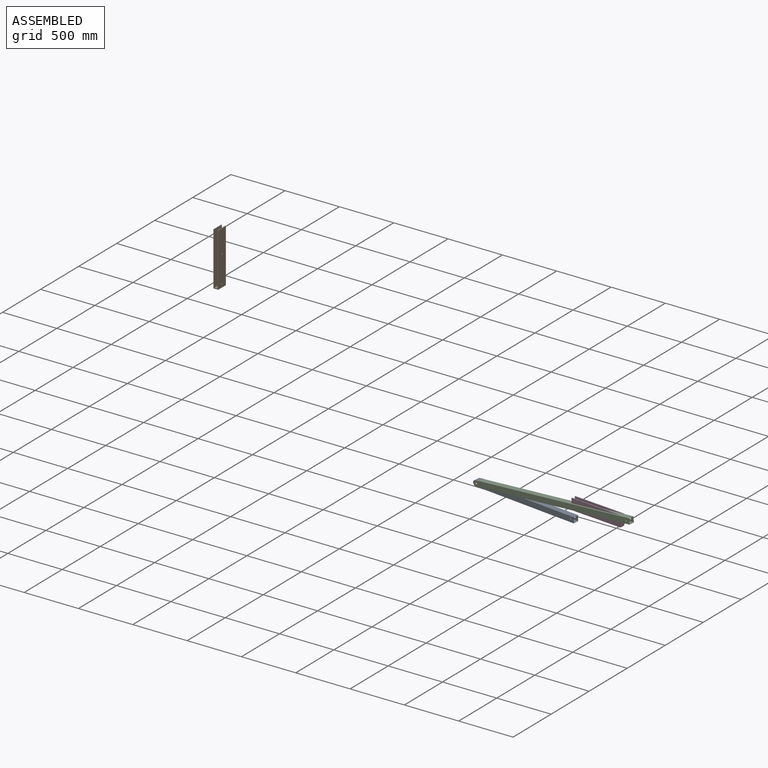
[diagram: assembled view]
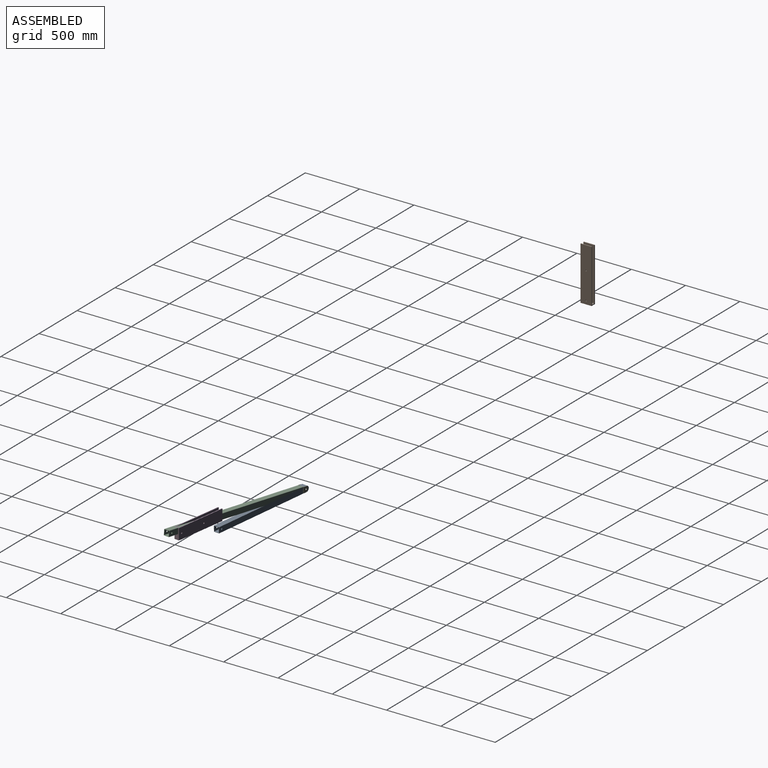
[diagram: assembled view, second angle]
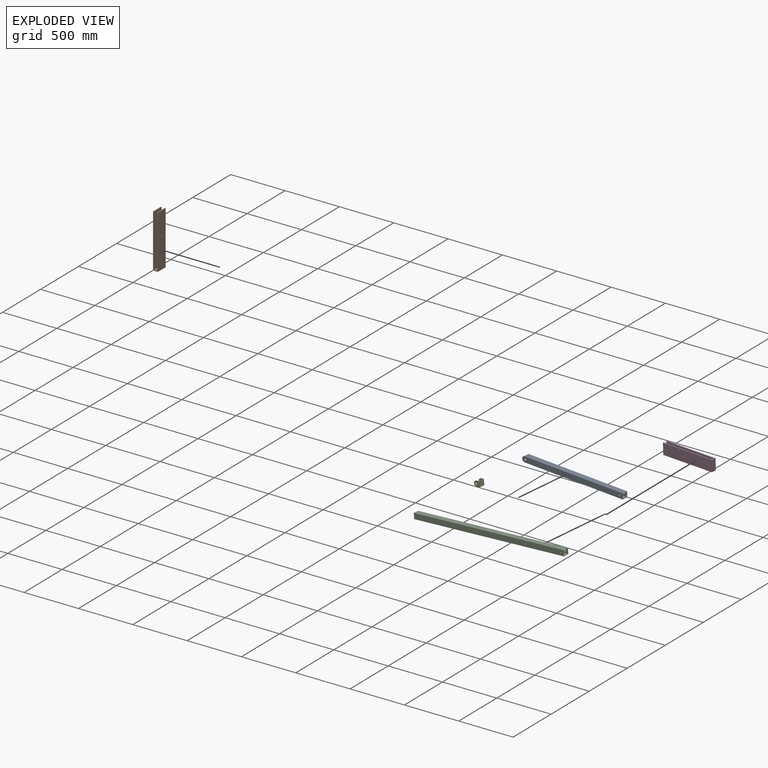
[diagram: exploded view]
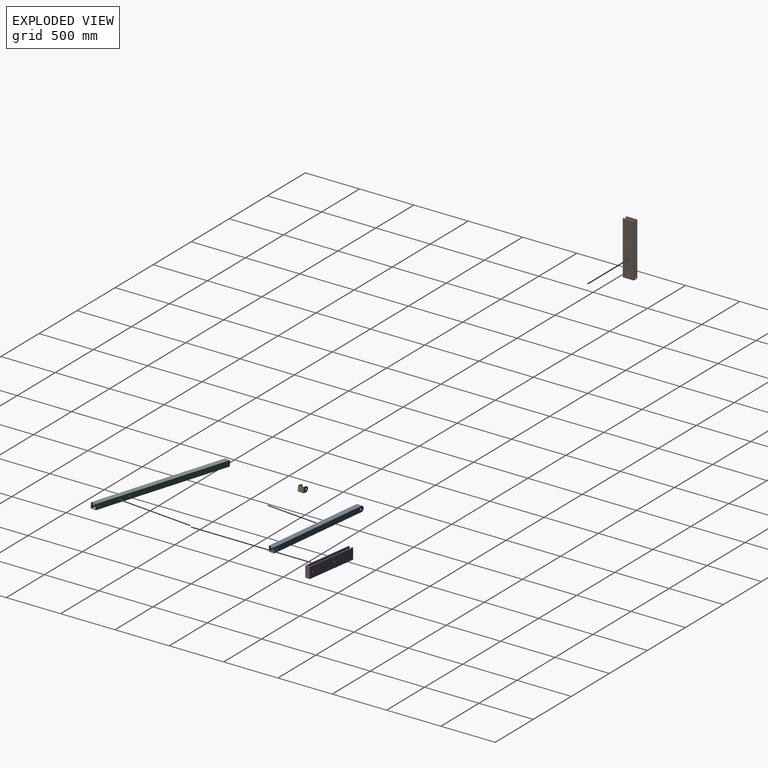
[diagram: exploded view, second angle]
ASSEMBLY  parts=5 mates=3
PART A: 14 faces, bbox 50.8x1016x50.8 mm
  f0: cylinder r=6.35mm len=12.7mm, axis (1,0,0), area 101.3mm2, adj f6,f11
  f1: plane 1016x45.72mm, normal (1,0,0), area 46012.4mm2, adj f3,f8,f9,f10,f12,f13
  f2: cylinder r=6.35mm len=12.7mm, axis (1,0,0), area 101.3mm2, adj f6,f11
  f3: plane 50.8x50.8mm, normal (0,1,0), area 490.3mm2, adj f1,f4,f5,f6,f7,f10,f11,f12
  f4: plane 1016x50.8mm, normal (-1,0,0), area 51082.5mm2, adj f3,f5,f7,f8,f9,f13
  f5: plane 990.6x50.8mm, normal (0,0,-1), area 50322.5mm2, adj f3,f4,f6,f13
  f6: plane 1016x50.8mm, normal (1,0,0), area 51082.5mm2, adj f0,f2,f3,f5,f7,f13
  f7: plane 990.6x50.8mm, normal (0,0,1), area 50322.5mm2, adj f3,f4,f6,f13
  f8: cylinder r=6.35mm len=12.7mm, axis (1,0,0), area 101.3mm2, adj f1,f4
  f9: cylinder r=6.35mm len=12.7mm, axis (1,0,0), area 101.3mm2, adj f1,f4
  f10: plane 1001.67x45.72mm, normal (0,0,1), area 45796.4mm2, adj f1,f3,f11,f13
  f11: plane 1016x45.72mm, normal (-1,0,0), area 46012.4mm2, adj f0,f2,f3,f10,f12,f13
  f12: plane 1001.67x45.72mm, normal (0,0,-1), area 45796.4mm2, adj f1,f3,f11,f13
  f13: cylinder r=25.4mm len=50.8mm, axis (1,0,0), area 1452.9mm2, adj f1,f4,f5,f6,f7,f10,f11,f12
PART B: 14 faces, bbox 44.5x101.6x492.2 mm
  f0: plane 101.6x7.62mm, normal (0,0,1), area 774.2mm2, adj f2,f3,f7,f9
  f1: plane 101.6x7.62mm, normal (0,0,1), area 774.2mm2, adj f6,f7,f8,f9
  f2: plane 484.54x101.6mm, normal (-1,0,0), area 48976.3mm2, adj f0,f5,f7,f9,f12,f13
  f3: plane 492.16x101.6mm, normal (1,0,0), area 49750.5mm2, adj f0,f4,f7,f9,f12,f13
  f4: plane 101.6x44.53mm, normal (0,0,-1), area 4524.1mm2, adj f3,f6,f7,f9
  f5: plane 101.6x29.29mm, normal (0,0,1), area 2975.7mm2, adj f2,f7,f8,f9
  f6: plane 492.16x101.6mm, normal (-1,0,0), area 49750.5mm2, adj f1,f4,f7,f9,f10,f11
  f7: plane 492.16x44.53mm, normal (0,-1,0), area 7723.8mm2, adj f0,f1,f2,f3,f4,f5,f6,f8
  f8: plane 484.54x101.6mm, normal (1,0,0), area 48976.3mm2, adj f1,f5,f7,f9,f10,f11
  f9: plane 492.16x44.53mm, normal (0,1,0), area 7723.8mm2, adj f0,f1,f2,f3,f4,f5,f6,f8
  f10: cylinder r=6.35mm len=12.7mm, axis (1,0,0), area 304mm2, adj f6,f8
  f11: cylinder r=6.35mm len=12.7mm, axis (1,0,0), area 304mm2, adj f6,f8
  f12: cylinder r=6.35mm len=12.7mm, axis (1,0,0), area 304mm2, adj f2,f3
  f13: cylinder r=6.35mm len=12.7mm, axis (1,0,0), area 304mm2, adj f2,f3
PART C: 15 faces, bbox 50.8x1524x50.8 mm
  f0: plane 50.8x50.8mm, normal (0,-1,0), area 490.3mm2, adj f1,f2,f3,f4,f6,f7,f8,f9
  f1: plane 1524x50.8mm, normal (-1,0,0), area 77165.8mm2, adj f0,f2,f4,f5,f13,f14
  f2: plane 1524x50.8mm, normal (0,0,-1), area 77419.2mm2, adj f0,f1,f3,f5
  f3: plane 1524x50.8mm, normal (1,0,0), area 77165.8mm2, adj f0,f2,f4,f5,f11,f12
  f4: plane 1524x50.8mm, normal (0,0,1), area 77419.2mm2, adj f0,f1,f3,f5
  f5: plane 50.8x50.8mm, normal (0,1,0), area 2580.6mm2, adj f1,f2,f3,f4
  f6: plane 1521.46x45.72mm, normal (1,0,0), area 69307.8mm2, adj f0,f7,f9,f10,f13,f14
  f7: plane 1521.46x45.72mm, normal (0,0,1), area 69561.2mm2, adj f0,f6,f8,f10
  f8: plane 1521.46x45.72mm, normal (-1,0,0), area 69307.8mm2, adj f0,f7,f9,f10,f11,f12
  f9: plane 1521.46x45.72mm, normal (0,0,-1), area 69561.2mm2, adj f0,f6,f8,f10
  f10: plane 45.72x45.72mm, normal (0,-1,0), area 2090.3mm2, adj f6,f7,f8,f9
  f11: cylinder r=6.35mm len=12.7mm, axis (1,0,0), area 101.3mm2, adj f3,f8
  f12: cylinder r=6.35mm len=12.7mm, axis (1,0,0), area 101.3mm2, adj f3,f8
  f13: cylinder r=6.35mm len=12.7mm, axis (1,0,0), area 101.3mm2, adj f1,f6
  f14: cylinder r=6.35mm len=12.7mm, axis (1,0,0), area 101.3mm2, adj f1,f6
PART D: same geometry as B
PART E: 12 faces, bbox 55.9x50.8x52.1 mm
  f0: plane 50.8x49.52mm, normal (1,0,0), area 2111.8mm2, adj f3,f5,f7,f8,f11
  f1: plane 52.06x50.8mm, normal (-1,0,0), area 2240.9mm2, adj f2,f5,f7,f8,f11
  f2: plane 55.85x50.8mm, normal (0,0,-1), area 2837.3mm2, adj f1,f4,f5,f7
  f3: plane 50.8x50.77mm, normal (0,0,1), area 2579.2mm2, adj f0,f5,f6,f7
  f4: plane 52.06x50.8mm, normal (1,0,0), area 2240.9mm2, adj f2,f5,f7,f9,f10
  f5: plane 55.85x26.66mm, normal (0,1,0), area 264.4mm2, adj f0,f1,f2,f3,f4,f6,f8,f9
  f6: plane 50.8x49.52mm, normal (-1,0,0), area 2111.8mm2, adj f3,f5,f7,f9,f10
  f7: plane 55.85x26.66mm, normal (0,-1,0), area 264.4mm2, adj f0,f1,f2,f3,f4,f6,f8,f9
  f8: cylinder r=25.4mm len=50.8mm, axis (-1,0,0), area 202.7mm2, adj f0,f1,f5,f7
  f9: cylinder r=25.4mm len=50.8mm, axis (-1,0,0), area 202.7mm2, adj f4,f5,f6,f7
  f10: cylinder r=6.35mm len=12.7mm, axis (-1,0,0), area 101.3mm2, adj f4,f6
  f11: cylinder r=6.35mm len=12.7mm, axis (-1,0,0), area 101.3mm2, adj f0,f1
PLACE A rot(axis=(0,0,-1),96.8deg) t=(3300.04,-692.71,-646.97)mm
PLACE B at identity
PLACE C rot(axis=(-0.66,0.75,-0.04),175.5deg) t=(3610.76,-730.59,-562.5)mm
PLACE D rot(axis=(0.54,-0.6,-0.59),124.9deg) t=(4243.77,-797.01,-518.12)mm
PLACE E rot(axis=(0.55,-0.62,-0.56),127.6deg) t=(2817.66,-647.38,-647.68)mm
MATE fastened E.f2 <-> C.f5  axis (0.99,-0.12,0.11) through (2858.48,-640.1,-643.33)mm
MATE revolute A.f2 <-> E.f10  axis (-0.12,-0.99,-0.01) through (2824.13,-661.54,-646.94)mm
MATE revolute D.f11 <-> C.f11  axis (-0.12,-0.99,-0.01) through (3983.64,-749.85,-522.51)mm
